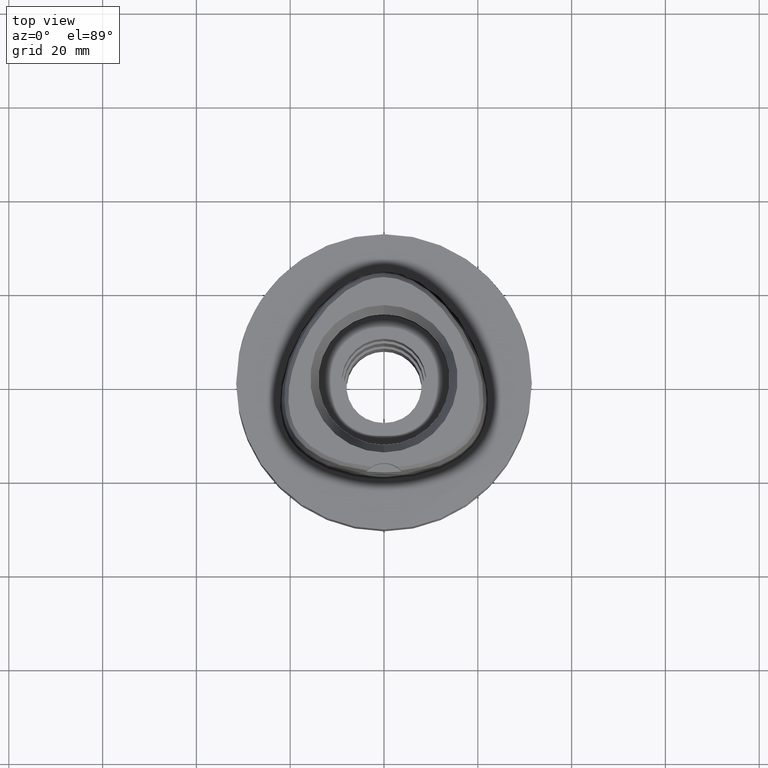
[diagram: clean part render]
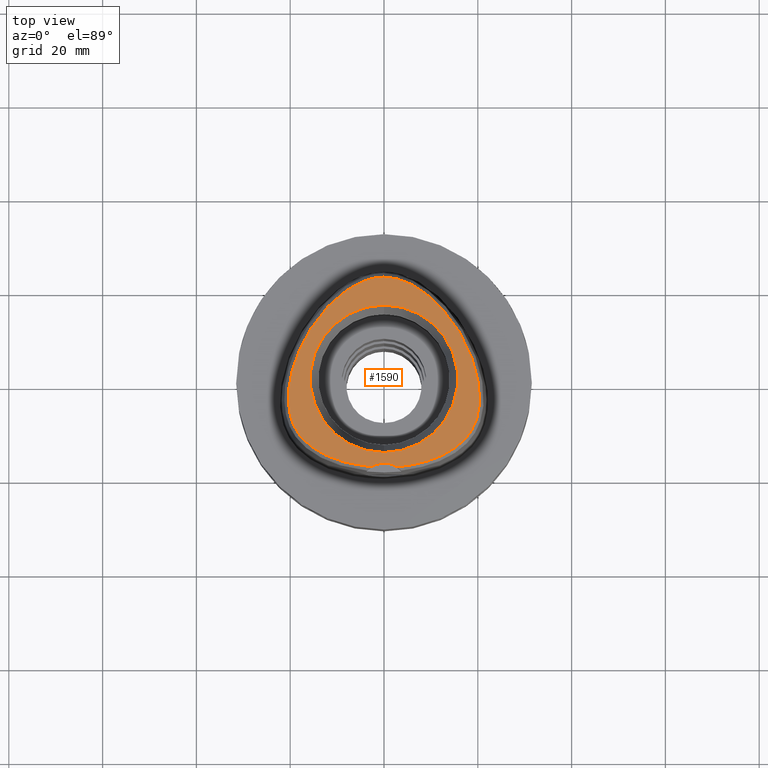
[diagram: same view with one face highlighted and labeled with its STEP entity id]
A machine part, top view. The second image highlights one B-rep face of the part: STEP entity #1590.
In plain terms, the highlighted planar face has unit normal (0, 0, 1).
Its self-contained STEP definition (entity closure, byte-faithful):
#17=CARTESIAN_POINT('',(0.E0,-2.3E1,3.8E1));
#18=DIRECTION('',(0.E0,0.E0,1.E0));
#19=DIRECTION('',(5.364574965210E-1,8.439273395420E-1,0.E0));
#20=AXIS2_PLACEMENT_3D('',#17,#18,#19);
#26=CARTESIAN_POINT('',(0.E0,-2.3E1,3.8E1));
#27=DIRECTION('',(0.E0,0.E0,1.E0));
#28=DIRECTION('',(0.E0,1.E0,0.E0));
#29=AXIS2_PLACEMENT_3D('',#26,#27,#28);
#34=CARTESIAN_POINT('',(-2.682279906005E0,-1.878035848610E1,3.8E1));
#35=CARTESIAN_POINT('',(-3.554745186500E0,-1.871053012336E1,3.8E1));
#36=CARTESIAN_POINT('',(-5.210524642511E0,-1.851005472707E1,3.8E1));
#37=CARTESIAN_POINT('',(-7.481820606332E0,-1.805414482233E1,3.8E1));
#38=CARTESIAN_POINT('',(-9.388629737489E0,-1.752021117052E1,3.8E1));
#39=CARTESIAN_POINT('',(-1.105988093421E1,-1.692382589844E1,3.8E1));
#40=CARTESIAN_POINT('',(-1.257273407983E1,-1.625602898846E1,3.8E1));
#41=CARTESIAN_POINT('',(-1.394636164076E1,-1.551851844716E1,3.8E1));
#42=CARTESIAN_POINT('',(-1.519723893366E1,-1.470563590488E1,3.8E1));
#43=CARTESIAN_POINT('',(-1.629987669152E1,-1.383555814823E1,3.8E1));
#44=CARTESIAN_POINT('',(-1.722382547893E1,-1.294974683492E1,3.8E1));
#45=CARTESIAN_POINT('',(-1.799280542115E1,-1.205130892289E1,3.8E1));
#46=CARTESIAN_POINT('',(-1.862277302367E1,-1.114527829987E1,3.8E1));
#47=CARTESIAN_POINT('',(-1.914471250170E1,-1.020005954782E1,3.8E1));
#48=CARTESIAN_POINT('',(-1.958689710711E1,-9.161844961304E0,3.8E1));
#49=CARTESIAN_POINT('',(-1.994895052998E1,-8.003012310217E0,3.8E1));
#50=CARTESIAN_POINT('',(-2.021913419093E1,-6.707310529648E0,3.8E1));
#51=CARTESIAN_POINT('',(-2.037862713369E1,-5.260126806659E0,3.8E1));
#52=CARTESIAN_POINT('',(-2.040929526739E1,-3.744513476480E0,3.8E1));
#53=CARTESIAN_POINT('',(-2.031386042842E1,-2.159779309662E0,3.8E1));
#54=CARTESIAN_POINT('',(-2.008528218217E1,-4.816655878051E-1,3.8E1));
#55=CARTESIAN_POINT('',(-1.970718262198E1,1.318914828953E0,3.8E1));
#56=CARTESIAN_POINT('',(-1.913403775442E1,3.330775101983E0,3.8E1));
#57=CARTESIAN_POINT('',(-1.829014630435E1,5.612769647033E0,3.8E1));
#58=CARTESIAN_POINT('',(-1.720717265537E1,7.949996872345E0,3.8E1));
#59=CARTESIAN_POINT('',(-1.593597440448E1,1.021626417652E1,3.8E1));
#60=CARTESIAN_POINT('',(-1.449963287290E1,1.237017749427E1,3.8E1));
#61=CARTESIAN_POINT('',(-1.295559927658E1,1.433099815787E1,3.8E1));
#62=CARTESIAN_POINT('',(-1.145760956641E1,1.595447313470E1,3.8E1));
#63=CARTESIAN_POINT('',(-1.006384058180E1,1.726113939881E1,3.8E1));
#64=CARTESIAN_POINT('',(-8.720729271550E0,1.835292592991E1,3.8E1));
#65=CARTESIAN_POINT('',(-7.393346320994E0,1.927842919863E1,3.8E1));
#66=CARTESIAN_POINT('',(-6.063268235642E0,2.005799180580E1,3.8E1));
#67=CARTESIAN_POINT('',(-4.734151149810E0,2.068987554008E1,3.8E1));
#68=CARTESIAN_POINT('',(-3.447181872753E0,2.115973021232E1,3.8E1));
#69=CARTESIAN_POINT('',(-2.238340982909E0,2.147190402496E1,3.8E1));
#70=CARTESIAN_POINT('',(-1.096801530596E0,2.164912708644E1,3.8E1));
#71=CARTESIAN_POINT('',(-3.603758728524E-1,2.168728795389E1,3.8E1));
#72=CARTESIAN_POINT('',(-3.470663397238E-11,2.168728795390E1,3.8E1));
#77=CARTESIAN_POINT('',(-3.470663397238E-11,2.168728795390E1,3.8E1));
#78=CARTESIAN_POINT('',(3.600081486032E-1,2.168728795390E1,3.8E1));
#79=CARTESIAN_POINT('',(1.095814633195E0,2.164921257123E1,3.8E1));
#80=CARTESIAN_POINT('',(2.237045914867E0,2.147217550050E1,3.8E1));
#81=CARTESIAN_POINT('',(3.445385499409E0,2.116021851481E1,3.8E1));
#82=CARTESIAN_POINT('',(4.731603891525E0,2.069110374592E1,3.8E1));
#83=CARTESIAN_POINT('',(6.066237151130E0,2.005638731326E1,3.8E1));
#84=CARTESIAN_POINT('',(7.390373626614E0,1.928024451342E1,3.8E1));
#85=CARTESIAN_POINT('',(8.721111052503E0,1.835274876699E1,3.8E1));
#86=CARTESIAN_POINT('',(1.006306682264E1,1.726170920306E1,3.8E1));
#87=CARTESIAN_POINT('',(1.145626739706E1,1.595592580129E1,3.8E1));
#88=CARTESIAN_POINT('',(1.296077108307E1,1.432560092740E1,3.8E1));
#89=CARTESIAN_POINT('',(1.451274077919E1,1.235208670969E1,3.8E1));
#90=CARTESIAN_POINT('',(1.594259143087E1,1.020526619252E1,3.8E1));
#91=CARTESIAN_POINT('',(1.721680311329E1,7.931705562021E0,3.8E1));
#92=CARTESIAN_POINT('',(1.829606143106E1,5.597042509225E0,3.8E1));
#93=CARTESIAN_POINT('',(1.912931562740E1,3.343492327677E0,3.8E1));
#94=CARTESIAN_POINT('',(1.970359997833E1,1.333997744826E0,3.8E1));
#95=CARTESIAN_POINT('',(2.008357130727E1,-4.716261842530E-1,3.8E1));
#96=CARTESIAN_POINT('',(2.031277215513E1,-2.149121673685E0,3.8E1));
#97=CARTESIAN_POINT('',(2.040928267634E1,-3.736122188726E0,3.8E1));
#98=CARTESIAN_POINT('',(2.037878769746E1,-5.257945165443E0,3.8E1));
#99=CARTESIAN_POINT('',(2.021995697845E1,-6.701646224879E0,3.8E1));
#100=CARTESIAN_POINT('',(1.994991294827E1,-7.999711896863E0,3.8E1));
#101=CARTESIAN_POINT('',(1.958720184886E1,-9.161367824425E0,3.8E1));
#102=CARTESIAN_POINT('',(1.914381200021E1,-1.020176955586E1,3.8E1));
#103=CARTESIAN_POINT('',(1.862446316469E1,-1.114221936084E1,3.8E1));
#104=CARTESIAN_POINT('',(1.799605509206E1,-1.204719476781E1,3.8E1));
#105=CARTESIAN_POINT('',(1.722625151621E1,-1.294716617093E1,3.8E1));
#106=CARTESIAN_POINT('',(1.630340192709E1,-1.383262678892E1,3.8E1));
#107=CARTESIAN_POINT('',(1.519513042100E1,-1.470744016310E1,3.8E1));
#108=CARTESIAN_POINT('',(1.394028754596E1,-1.552208338004E1,3.8E1));
#109=CARTESIAN_POINT('',(1.256738277710E1,-1.625871373852E1,3.8E1));
#110=CARTESIAN_POINT('',(1.105156259701E1,-1.692694529073E1,3.8E1));
#111=CARTESIAN_POINT('',(9.392329850105E0,-1.751890748088E1,3.8E1));
#112=CARTESIAN_POINT('',(7.480586106843E0,-1.805458470416E1,3.8E1));
#113=CARTESIAN_POINT('',(5.209046193961E0,-1.851024520604E1,3.8E1));
#114=CARTESIAN_POINT('',(3.553979628531E0,-1.871058638715E1,3.8E1));
#115=CARTESIAN_POINT('',(2.682287482607E0,-1.878036330229E1,3.8E1));
#120=CARTESIAN_POINT('',(0.E0,0.E0,3.8E1));
#121=DIRECTION('',(0.E0,0.E0,1.E0));
#122=DIRECTION('',(0.E0,1.E0,0.E0));
#123=AXIS2_PLACEMENT_3D('',#120,#121,#122);
#128=CARTESIAN_POINT('',(0.E0,0.E0,3.8E1));
#129=DIRECTION('',(0.E0,0.E0,1.E0));
#130=DIRECTION('',(0.E0,-1.E0,0.E0));
#131=AXIS2_PLACEMENT_3D('',#128,#129,#130);
#1414=CARTESIAN_POINT('',(0.E0,-1.8E1,3.8E1));
#1415=CARTESIAN_POINT('',(-2.682279906007E0,-1.878035848610E1,3.8E1));
#1416=VERTEX_POINT('',#1414);
#1417=VERTEX_POINT('',#1415);
#1418=CARTESIAN_POINT('',(2.682287482605E0,-1.878036330229E1,3.8E1));
#1419=VERTEX_POINT('',#1418);
#1420=VERTEX_POINT('',#72);
#1421=CARTESIAN_POINT('',(0.E0,1.571487483156E1,3.8E1));
#1422=CARTESIAN_POINT('',(0.E0,-1.571487483156E1,3.8E1));
#1423=VERTEX_POINT('',#1421);
#1424=VERTEX_POINT('',#1422);
#1569=CARTESIAN_POINT('',(0.E0,0.E0,3.8E1));
#1570=DIRECTION('',(0.E0,0.E0,1.E0));
#1571=DIRECTION('',(0.E0,1.E0,0.E0));
#1572=AXIS2_PLACEMENT_3D('',#1569,#1570,#1571);
#1573=PLANE('',#1572);
#1575=ORIENTED_EDGE('',*,*,#1574,.T.);
#1577=ORIENTED_EDGE('',*,*,#1576,.T.);
#1579=ORIENTED_EDGE('',*,*,#1578,.T.);
#1581=ORIENTED_EDGE('',*,*,#1580,.T.);
#1582=EDGE_LOOP('',(#1575,#1577,#1579,#1581));
#1583=FACE_OUTER_BOUND('',#1582,.F.);
#1585=ORIENTED_EDGE('',*,*,#1584,.T.);
#1587=ORIENTED_EDGE('',*,*,#1586,.T.);
#1588=EDGE_LOOP('',(#1585,#1587));
#1589=FACE_BOUND('',#1588,.F.);
#21=CIRCLE('',#20,5.E0);
#30=CIRCLE('',#29,5.E0);
#73=B_SPLINE_CURVE_WITH_KNOTS('',3,(#34,#35,#36,#37,#38,#39,#40,#41,#42,#43,#44,
#45,#46,#47,#48,#49,#50,#51,#52,#53,#54,#55,#56,#57,#58,#59,#60,#61,#62,#63,#64,
#65,#66,#67,#68,#69,#70,#71,#72),.UNSPECIFIED.,.F.,.F.,(4,1,1,1,1,1,1,1,1,1,1,1,
1,1,1,1,1,1,1,1,1,1,1,1,1,1,1,1,1,1,1,1,1,1,1,1,4),(0.E0,2.777777777778E-2,
5.555555555556E-2,8.333333333333E-2,1.111111111111E-1,1.388888888889E-1,
1.666666666667E-1,1.944444444444E-1,2.222222222222E-1,2.5E-1,2.777777777778E-1,
3.055555555556E-1,3.333333333333E-1,3.611111111111E-1,3.888888888889E-1,
4.166666666667E-1,4.444444444444E-1,4.722222222222E-1,5.E-1,5.277777777778E-1,
5.555555555556E-1,5.833333333333E-1,6.111111111111E-1,6.388888888889E-1,
6.666666666667E-1,6.944444444444E-1,7.222222222222E-1,7.5E-1,7.777777777778E-1,
8.055555555556E-1,8.333333333333E-1,8.611111111111E-1,8.888888888889E-1,
9.166666666667E-1,9.444444444444E-1,9.722222222222E-1,1.E0),.UNSPECIFIED.);
#116=B_SPLINE_CURVE_WITH_KNOTS('',3,(#77,#78,#79,#80,#81,#82,#83,#84,#85,#86,
#87,#88,#89,#90,#91,#92,#93,#94,#95,#96,#97,#98,#99,#100,#101,#102,#103,#104,
#105,#106,#107,#108,#109,#110,#111,#112,#113,#114,#115),.UNSPECIFIED.,.F.,.F.,
(4,1,1,1,1,1,1,1,1,1,1,1,1,1,1,1,1,1,1,1,1,1,1,1,1,1,1,1,1,1,1,1,1,1,1,1,4),(
0.E0,2.777777777778E-2,5.555555555556E-2,8.333333333333E-2,1.111111111111E-1,
1.388888888889E-1,1.666666666667E-1,1.944444444444E-1,2.222222222222E-1,2.5E-1,
2.777777777778E-1,3.055555555556E-1,3.333333333333E-1,3.611111111111E-1,
3.888888888889E-1,4.166666666667E-1,4.444444444444E-1,4.722222222222E-1,5.E-1,
5.277777777778E-1,5.555555555556E-1,5.833333333333E-1,6.111111111111E-1,
6.388888888889E-1,6.666666666667E-1,6.944444444444E-1,7.222222222222E-1,7.5E-1,
7.777777777778E-1,8.055555555556E-1,8.333333333333E-1,8.611111111111E-1,
8.888888888889E-1,9.166666666667E-1,9.444444444444E-1,9.722222222222E-1,1.E0),
.UNSPECIFIED.);
#124=CIRCLE('',#123,1.571487483156E1);
#132=CIRCLE('',#131,1.571487483156E1);
#1574=EDGE_CURVE('',#1419,#1416,#21,.T.);
#1576=EDGE_CURVE('',#1416,#1417,#30,.T.);
#1578=EDGE_CURVE('',#1417,#1420,#73,.T.);
#1580=EDGE_CURVE('',#1420,#1419,#116,.T.);
#1584=EDGE_CURVE('',#1423,#1424,#124,.T.);
#1586=EDGE_CURVE('',#1424,#1423,#132,.T.);
#1590=ADVANCED_FACE('',(#1583,#1589),#1573,.T.);